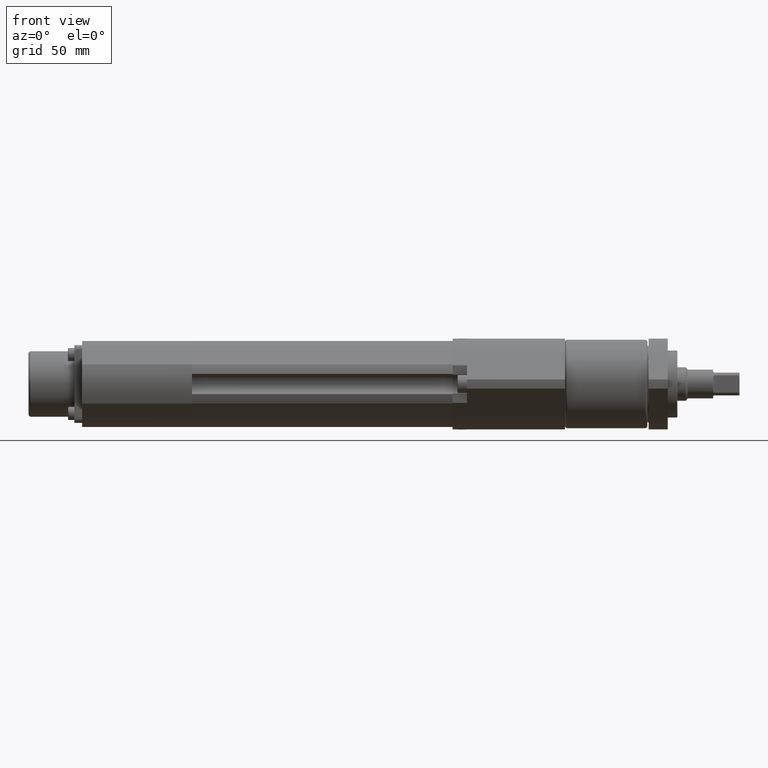
[diagram: clean part render]
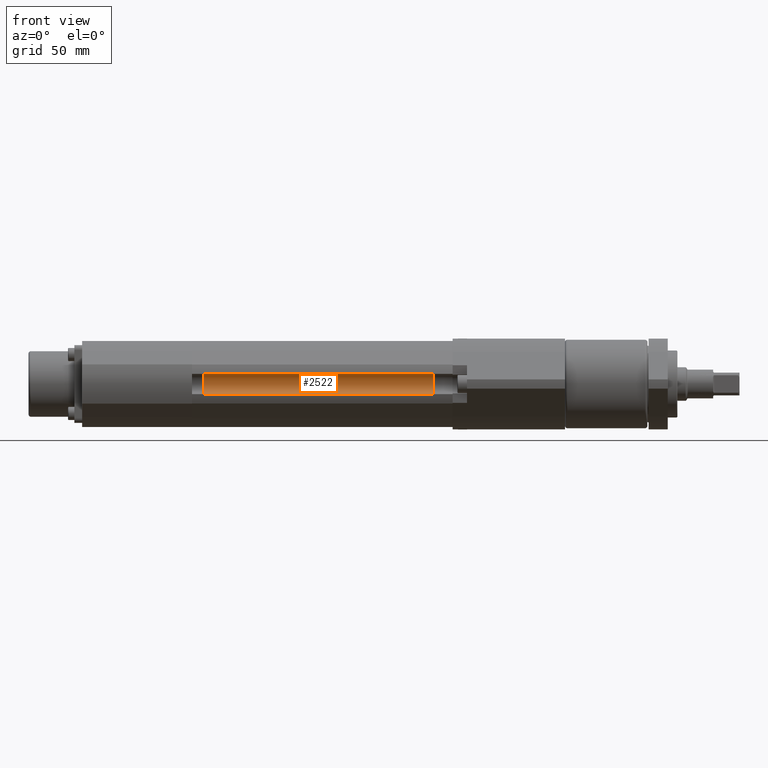
[diagram: same view with one face highlighted and labeled with its STEP entity id]
A machine part, front view. The second image highlights one B-rep face of the part: STEP entity #2522.
In plain terms, the highlighted cylindrical surface (edge-blend (fillet) strip) has radius 5 mm, axis along (1, -0, -0).
Its self-contained STEP definition (entity closure, byte-faithful):
#28 = LINE ( 'NONE', #3128, #7518 ) ;
#214 = DIRECTION ( 'NONE',  ( 1.000000000000000000, -0.0000000000000000000, -0.0000000000000000000 ) ) ;
#786 = ORIENTED_EDGE ( 'NONE', *, *, #6560, .T. ) ;
#864 = AXIS2_PLACEMENT_3D ( 'NONE', #1246, #6473, #2006 ) ;
#982 = EDGE_CURVE ( 'NONE', #8189, #3663, #2097, .T. ) ;
#1182 = CARTESIAN_POINT ( 'NONE',  ( -194.0000000000000000, -20.05594713656387600, -4.243699383245148800 ) ) ;
#1246 = CARTESIAN_POINT ( 'NONE',  ( -194.0000000000000000, -22.69999999999999900, 0.0000000000000000000 ) ) ;
#1416 = ORIENTED_EDGE ( 'NONE', *, *, #8815, .F. ) ;
#1764 = EDGE_LOOP ( 'NONE', ( #9671, #1416, #7857, #786 ) ) ;
#2006 = DIRECTION ( 'NONE',  ( 0.0000000000000000000, 0.0000000000000000000, -1.000000000000000000 ) ) ;
#2097 = CIRCLE ( 'NONE', #5967, 5.000000000000001800 ) ;
#2437 = CARTESIAN_POINT ( 'NONE',  ( -98.00000000000000000, -20.05594713656387600, -4.243699383245148800 ) ) ;
#2466 = VERTEX_POINT ( 'NONE', #1182 ) ;
#2522 = ADVANCED_FACE ( 'NONE', ( #8833 ), #6619, .F. ) ;
#2823 = CARTESIAN_POINT ( 'NONE',  ( -194.0000000000000000, -22.69999999999999900, 0.0000000000000000000 ) ) ;
#2912 = CARTESIAN_POINT ( 'NONE',  ( -98.00000000000000000, -20.05594713656387600, 4.243699383245148800 ) ) ;
#2975 = CARTESIAN_POINT ( 'NONE',  ( -194.0000000000000000, -20.05594713656387600, 4.243699383245148800 ) ) ;
#3128 = CARTESIAN_POINT ( 'NONE',  ( -194.0000000000000000, -20.05594713656387600, 4.243699383245148800 ) ) ;
#3133 = AXIS2_PLACEMENT_3D ( 'NONE', #2823, #8033, #3566 ) ;
#3566 = DIRECTION ( 'NONE',  ( 0.0000000000000000000, 0.0000000000000000000, 1.000000000000000000 ) ) ;
#3601 = EDGE_CURVE ( 'NONE', #2466, #6209, #4975, .T. ) ;
#3663 = VERTEX_POINT ( 'NONE', #2912 ) ;
#3841 = VECTOR ( 'NONE', #214, 1000.000000000000000 ) ;
#4055 = CARTESIAN_POINT ( 'NONE',  ( -98.00000000000000000, -22.69999999999999900, 0.0000000000000000000 ) ) ;
#4807 = DIRECTION ( 'NONE',  ( 0.0000000000000000000, 0.0000000000000000000, 1.000000000000000000 ) ) ;
#4975 = CIRCLE ( 'NONE', #3133, 5.000000000000001800 ) ;
#5967 = AXIS2_PLACEMENT_3D ( 'NONE', #4055, #9280, #4807 ) ;
#6157 = CARTESIAN_POINT ( 'NONE',  ( -194.0000000000000000, -20.05594713656387600, -4.243699383245148800 ) ) ;
#6209 = VERTEX_POINT ( 'NONE', #2975 ) ;
#6473 = DIRECTION ( 'NONE',  ( 1.000000000000000000, -0.0000000000000000000, -0.0000000000000000000 ) ) ;
#6560 = EDGE_CURVE ( 'NONE', #2466, #8189, #7833, .T. ) ;
#6619 = CYLINDRICAL_SURFACE ( 'NONE', #864, 5.000000000000001800 ) ;
#7518 = VECTOR ( 'NONE', #7606, 1000.000000000000000 ) ;
#7606 = DIRECTION ( 'NONE',  ( 1.000000000000000000, -0.0000000000000000000, -0.0000000000000000000 ) ) ;
#7833 = LINE ( 'NONE', #6157, #3841 ) ;
#7857 = ORIENTED_EDGE ( 'NONE', *, *, #3601, .F. ) ;
#8033 = DIRECTION ( 'NONE',  ( 1.000000000000000000, -0.0000000000000000000, -0.0000000000000000000 ) ) ;
#8189 = VERTEX_POINT ( 'NONE', #2437 ) ;
#8815 = EDGE_CURVE ( 'NONE', #6209, #3663, #28, .T. ) ;
#8833 = FACE_OUTER_BOUND ( 'NONE', #1764, .T. ) ;
#9280 = DIRECTION ( 'NONE',  ( 1.000000000000000000, -0.0000000000000000000, -0.0000000000000000000 ) ) ;
#9671 = ORIENTED_EDGE ( 'NONE', *, *, #982, .T. ) ;